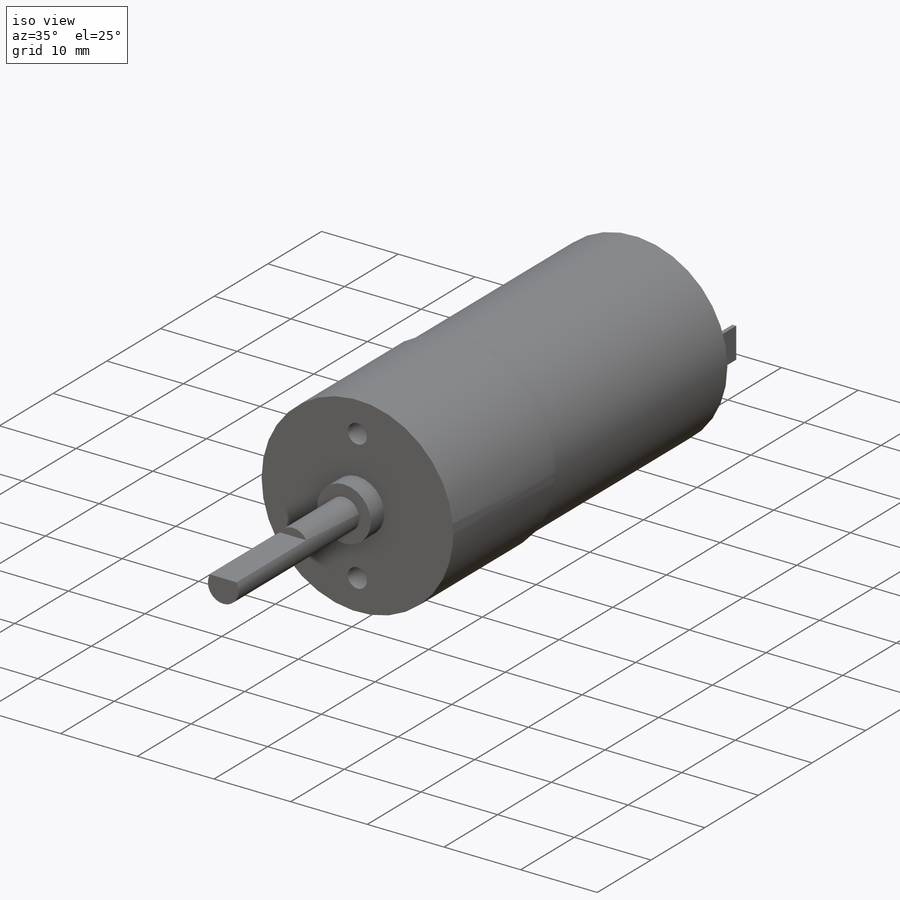
[diagram: iso view]
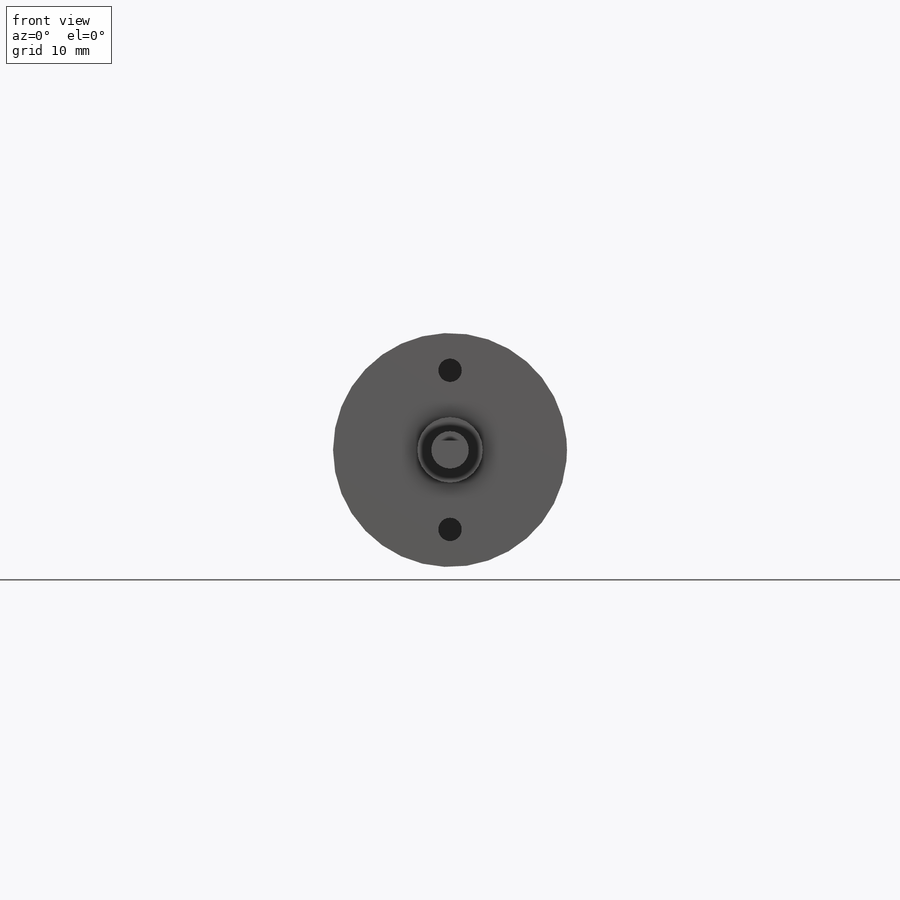
[diagram: front view]
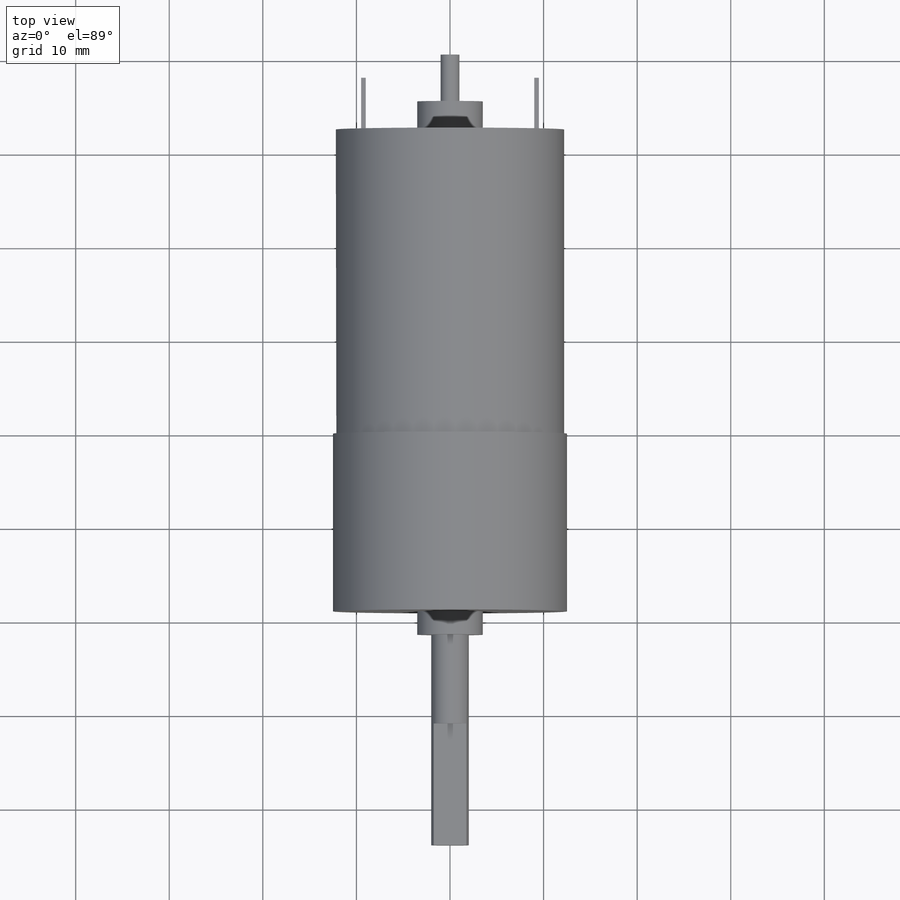
[diagram: top view]
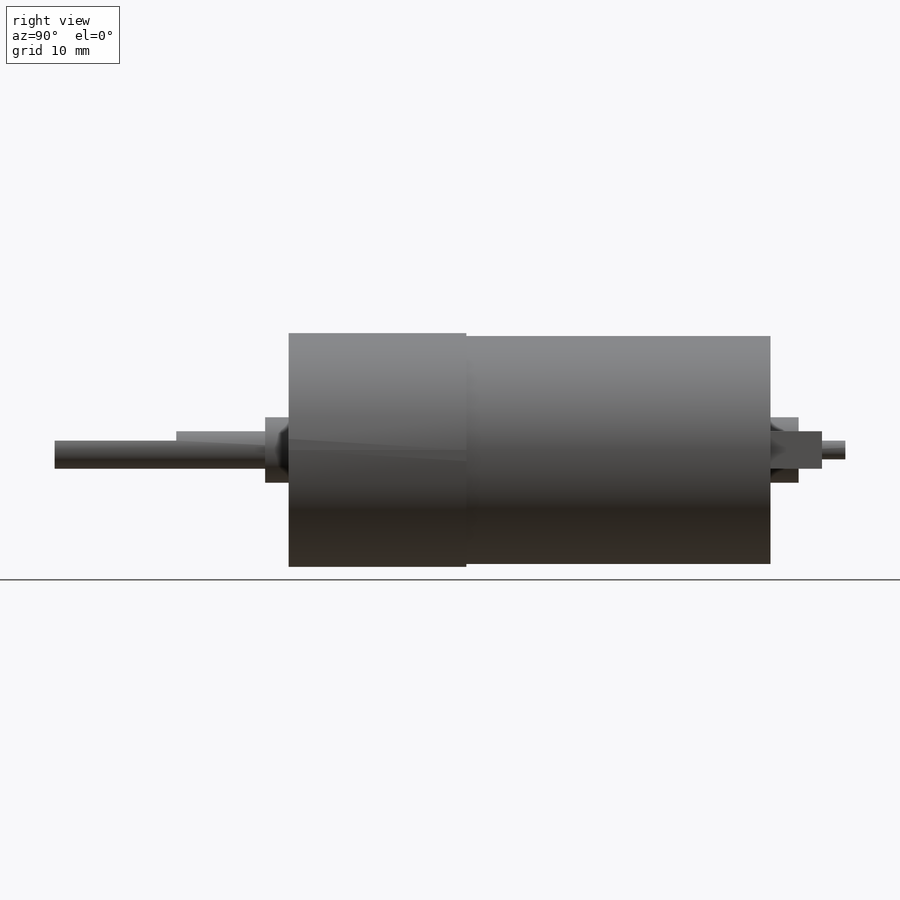
[diagram: right view]
SOLIDWORKS PART (.sldprt)
format: sldprt  version: not decoded by parser v0  size: 236,032 bytes
history: native  units: mm
features: sketch x9, extrude x7, cut_extrude x2, material x1 (+12 scaffold rows collapsed)
feature tree (31):
  scaffold x12  (default folders/planes/origin — collapsed)
  material  "재질 <지정안함>"
  sketch  "스케치1"  dims[D1=25.0mm]
  extrude  "보스-돌출1"  Depth=19mm
  sketch  "스케치2"  dims[D1=~1.648783mm]
  extrude  "보스-돌출2"  Depth=2.5mm
  sketch  "스케치3"  dims[D1=4.0mm]
  extrude  "보스-돌출3"  Depth=22.5mm
  sketch  "스케치4"  dims[D1=1.0mm]
  cut_extrude  "컷-돌출1"  Depth=13mm
  sketch  "스케치5"  dims[D1=24.4mm]
  extrude  "보스-돌출5"  Depth=32.5mm
  sketch  "스케치6"  dims[D1=~0.903582mm]
  extrude  "보스-돌출6"  Depth=3mm
  sketch  "스케치7"  dims[D1=~0.337131mm]
  extrude  "보스-돌출7"  Depth=5mm
  sketch  "스케치8"  dims[D1=2.5mm D2=2.5mm]
  cut_extrude  "컷-돌출2"  Depth=5mm
  sketch  "스케치9"  dims[c1.D1=9.0mm c1.D2=~9.276859mm c2.D1=~15.376194mm c2.D2=9.0mm c2.D3=9.0mm c3.D1=0.5mm c3.D4=0.5mm c3.D5=4.0mm c3.D6=4.0mm c3.D7=2.0mm c3.D8=2.0mm]
  extrude  "보스-돌출8"  Depth=5.5mm
decode coverage: 18 of 18 modeling features carry decoded parameters
note: ~ marks probable driven/reference dimensions
note: suppression state not decoded; provenance and decode notes live in map.json
